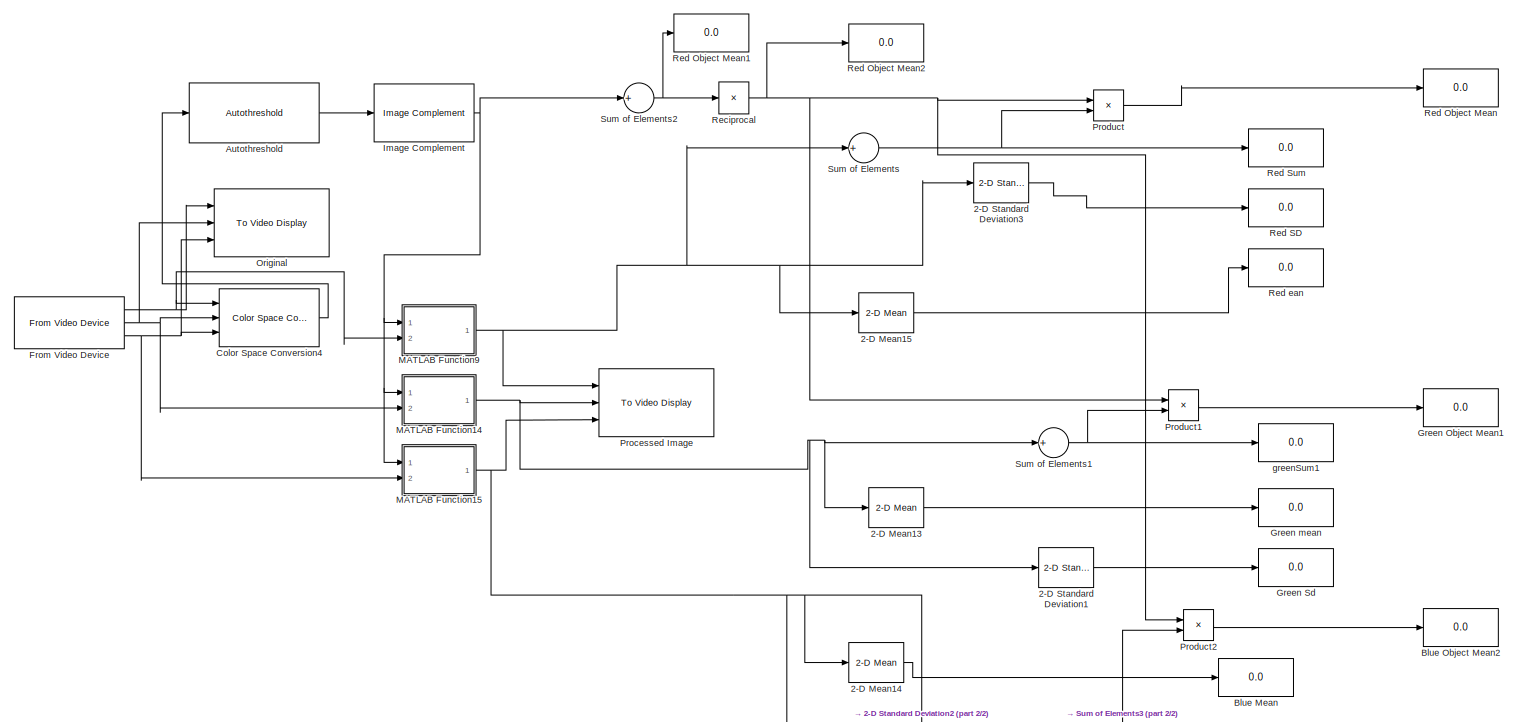
[diagram: root canvas - part 1/2, most of the canvas]
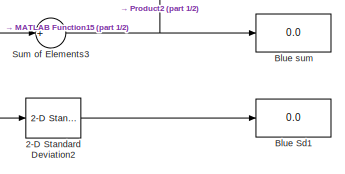
[diagram: root canvas - part 2/2, bottom right region]
MODEL slx_7010275f873f
KIND model
CONFIG AbsTol = auto
CONFIG FixedStep = auto
CONFIG MaxStep = auto
CONFIG MinStep = auto
CONFIG RelTol = 1e-3
CONFIG SampleTimeConstraint = Unconstrained
CONFIG Solver = VariableStepAuto
CONFIG SolverMode = Auto
CONFIG SolverName = VariableStepAuto
CONFIG StartTime = 0.0
CONFIG StopTime = inf
BLOCK [Reference] 2-D Mean13  REF=visionstatistics/2-D Mean
  Ports = [1, 1]
  SourceBlock = visionstatistics/2-D Mean
  SourceType = 2-D Mean
  UserDataPersistent = on
BLOCK [Reference] 2-D Mean14  REF=visionstatistics/2-D Mean
  Ports = [1, 1]
  SourceBlock = visionstatistics/2-D Mean
  SourceType = 2-D Mean
  UserDataPersistent = on
BLOCK [Reference] 2-D Mean15  REF=visionstatistics/2-D Mean
  Ports = [1, 1]
  SourceBlock = visionstatistics/2-D Mean
  SourceType = 2-D Mean
  UserDataPersistent = on
BLOCK [Reference] 2-D Standard Deviation1  REF=visionstatistics/2-D Standard
Deviation
  Ports = [1, 1]
  SourceBlock = visionstatistics/2-D Standard\nDeviation
  SourceType = 2-D Standard Deviation
  UserDataPersistent = on
BLOCK [Reference] 2-D Standard Deviation2  REF=visionstatistics/2-D Standard
Deviation
  Ports = [1, 1]
  SourceBlock = visionstatistics/2-D Standard\nDeviation
  SourceType = 2-D Standard Deviation
  UserDataPersistent = on
BLOCK [Reference] 2-D Standard Deviation3  REF=visionstatistics/2-D Standard
Deviation
  Ports = [1, 1]
  SourceBlock = visionstatistics/2-D Standard\nDeviation
  SourceType = 2-D Standard Deviation
  UserDataPersistent = on
BLOCK [Reference] Autothreshold  REF=visionconversions/Autothreshold
  Ports = [1, 1]
  SourceBlock = visionconversions/Autothreshold
  SourceType = Autothreshold
BLOCK [Display] Blue Mean
  Decimation = 1
  Ports = [1]
BLOCK [Display] Blue Object Mean2
  Decimation = 1
  Ports = [1]
BLOCK [Display] Blue Sd1
  Decimation = 1
  Ports = [1]
BLOCK [Display] Blue sum
  Decimation = 1
  Ports = [1]
BLOCK [Reference] Color Space Conversion4  REF=visionconversions/Color Space
 Conversion
  Ports = [3, 1]
  SourceBlock = visionconversions/Color Space\n Conversion
  SourceType = Color Space Conversion
BLOCK [Reference] From Video Device  REF=imaqlib/From Video Device
  Ports = [0, 3]
  SourceBlock = imaqlib/From Video Device
  SourceType = From Video Device
  UserDataPersistent = on
BLOCK [Display] Green Object Mean1
  Decimation = 1
  Ports = [1]
BLOCK [Display] Green Sd
  Decimation = 1
  Ports = [1]
BLOCK [Display] Green mean
  Decimation = 1
  Ports = [1]
BLOCK [Reference] Image Complement  REF=visionconversions/Image Complement
  Ports = [1, 1]
  SourceBlock = visionconversions/Image Complement
  SourceType = Image Complement
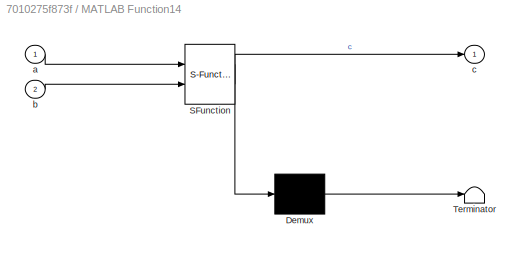
BLOCK [SubSystem] MATLAB Function14
  ErrorFcn = Stateflow.Translate.translate
  PermitHierarchicalResolution = ExplicitOnly
  Ports = [2, 1]
  RequestExecContextInheritance = off
  SFBlockType = MATLAB Function
  TreatAsAtomicUnit = on
  Variant = off
BLOCK [Demux] MATLAB Function14/ Demux 
  Outputs = 1
  Ports = [1, 1]
BLOCK [S-Function] MATLAB Function14/ SFunction 
  EnableBusSupport = on
  FunctionName = sf_sfun
  PortCounts = [2 2]
  Ports = [2, 2]
  SFunctionDeploymentMode = off
  Tag = Stateflow S-Function RGB_Color_Component_AutoThresholding 10
BLOCK [Terminator] MATLAB Function14/ Terminator 
BLOCK [Inport] MATLAB Function14/a
  IconDisplay = Port number
BLOCK [Inport] MATLAB Function14/b
  IconDisplay = Port number
  Port = 2
BLOCK [Outport] MATLAB Function14/c
  IconDisplay = Port number
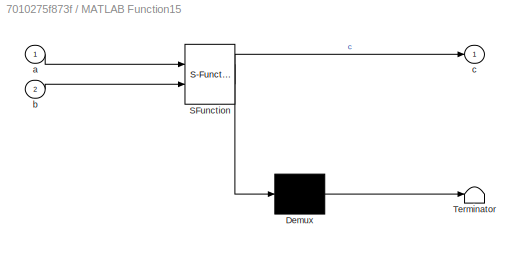
BLOCK [SubSystem] MATLAB Function15
  ErrorFcn = Stateflow.Translate.translate
  PermitHierarchicalResolution = ExplicitOnly
  Ports = [2, 1]
  RequestExecContextInheritance = off
  SFBlockType = MATLAB Function
  TreatAsAtomicUnit = on
  Variant = off
BLOCK [Demux] MATLAB Function15/ Demux 
  Outputs = 1
  Ports = [1, 1]
BLOCK [S-Function] MATLAB Function15/ SFunction 
  EnableBusSupport = on
  FunctionName = sf_sfun
  PortCounts = [2 2]
  Ports = [2, 2]
  SFunctionDeploymentMode = off
  Tag = Stateflow S-Function RGB_Color_Component_AutoThresholding 15
BLOCK [Terminator] MATLAB Function15/ Terminator 
BLOCK [Inport] MATLAB Function15/a
  IconDisplay = Port number
BLOCK [Inport] MATLAB Function15/b
  IconDisplay = Port number
  Port = 2
BLOCK [Outport] MATLAB Function15/c
  IconDisplay = Port number
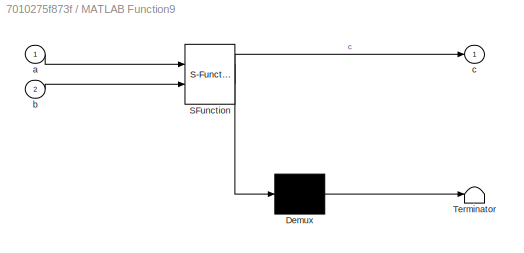
BLOCK [SubSystem] MATLAB Function9
  ErrorFcn = Stateflow.Translate.translate
  PermitHierarchicalResolution = ExplicitOnly
  Ports = [2, 1]
  RequestExecContextInheritance = off
  SFBlockType = MATLAB Function
  TreatAsAtomicUnit = on
  Variant = off
BLOCK [Demux] MATLAB Function9/ Demux 
  Outputs = 1
  Ports = [1, 1]
BLOCK [S-Function] MATLAB Function9/ SFunction 
  EnableBusSupport = on
  FunctionName = sf_sfun
  PortCounts = [2 2]
  Ports = [2, 2]
  SFunctionDeploymentMode = off
  Tag = Stateflow S-Function RGB_Color_Component_AutoThresholding 16
BLOCK [Terminator] MATLAB Function9/ Terminator 
BLOCK [Inport] MATLAB Function9/a
  IconDisplay = Port number
BLOCK [Inport] MATLAB Function9/b
  IconDisplay = Port number
  Port = 2
BLOCK [Outport] MATLAB Function9/c
  IconDisplay = Port number
BLOCK [Reference] Original  REF=visionsinks/To Video Display
  Ports = [3]
  SourceBlock = visionsinks/To Video Display
  SourceType = To Video Display
BLOCK [Reference] Processed Image  REF=visionsinks/To Video Display
  Ports = [3]
  SourceBlock = visionsinks/To Video Display
  SourceType = To Video Display
BLOCK [Product] Product
  InputSameDT = off
  OutDataTypeStr = Inherit: Inherit via internal rule
  Ports = [2, 1]
  RndMeth = Floor
  SaturateOnIntegerOverflow = off
BLOCK [Product] Product1
  InputSameDT = off
  OutDataTypeStr = Inherit: Inherit via internal rule
  Ports = [2, 1]
  RndMeth = Floor
  SaturateOnIntegerOverflow = off
BLOCK [Product] Product2
  InputSameDT = off
  OutDataTypeStr = Inherit: Inherit via internal rule
  Ports = [2, 1]
  RndMeth = Floor
  SaturateOnIntegerOverflow = off
BLOCK [Product] Reciprocal
  InputSameDT = off
  Inputs = /
  OutDataTypeStr = double
  Ports = [1, 1]
BLOCK [Display] Red Object Mean
  Decimation = 1
  Ports = [1]
BLOCK [Display] Red Object Mean1
  Decimation = 1
  Ports = [1]
BLOCK [Display] Red Object Mean2
  Decimation = 1
  Ports = [1]
BLOCK [Display] Red SD
  Decimation = 1
  Ports = [1]
BLOCK [Display] Red Sum
  Decimation = 1
  Ports = [1]
BLOCK [Display] Red ean
  Decimation = 1
  Ports = [1]
BLOCK [Sum] Sum of Elements
  InputSameDT = off
  Inputs = +
  OutDataTypeStr = Inherit: Inherit via internal rule
  Ports = [1, 1]
  SaturateOnIntegerOverflow = off
BLOCK [Sum] Sum of Elements1
  InputSameDT = off
  Inputs = +
  OutDataTypeStr = Inherit: Inherit via internal rule
  Ports = [1, 1]
  SaturateOnIntegerOverflow = off
BLOCK [Sum] Sum of Elements2
  InputSameDT = off
  Inputs = +
  OutDataTypeStr = Inherit: Inherit via internal rule
  Ports = [1, 1]
  SaturateOnIntegerOverflow = off
BLOCK [Sum] Sum of Elements3
  InputSameDT = off
  Inputs = +
  OutDataTypeStr = Inherit: Inherit via internal rule
  Ports = [1, 1]
  SaturateOnIntegerOverflow = off
BLOCK [Display] greenSum1
  Decimation = 1
  Ports = [1]
LINE 2-D Mean13:1 -> Green mean:1
LINE 2-D Mean14:1 -> Blue Mean:1
LINE 2-D Mean15:1 -> Red ean:1
LINE 2-D Standard Deviation1:1 -> Green Sd:1
LINE 2-D Standard Deviation2:1 -> Blue Sd1:1
LINE 2-D Standard Deviation3:1 -> Red SD:1
LINE Autothreshold:1 -> Image Complement:1
LINE Color Space Conversion4:1 -> Autothreshold:1
NET From Video Device:1 -> Color Space Conversion4:1, MATLAB Function9:2, Original:1
NET From Video Device:2 -> Color Space Conversion4:2, MATLAB Function14:2, Original:2
NET From Video Device:3 -> Color Space Conversion4:3, MATLAB Function15:2, Original:3
NET Image Complement:1 -> MATLAB Function14:1, MATLAB Function15:1, MATLAB Function9:1, Sum of Elements2:1
NET MATLAB Function14:1 -> 2-D Mean13:1, 2-D Standard Deviation1:1, Processed Image:2, Sum of Elements1:1
NET MATLAB Function15:1 -> 2-D Mean14:1, 2-D Standard Deviation2:1, Processed Image:3, Sum of Elements3:1
NET MATLAB Function9:1 -> 2-D Mean15:1, 2-D Standard Deviation3:1, Processed Image:1, Sum of Elements:1
LINE Product1:1 -> Green Object Mean1:1
LINE Product2:1 -> Blue Object Mean2:1
LINE Product:1 -> Red Object Mean:1
NET Reciprocal:1 -> Product1:1, Product2:1, Product:1, Red Object Mean2:1
NET Sum of Elements1:1 -> Product1:2, greenSum1:1
NET Sum of Elements2:1 -> Reciprocal:1, Red Object Mean1:1
NET Sum of Elements3:1 -> Blue sum:1, Product2:2
NET Sum of Elements:1 -> Product:2, Red Sum:1
note: NET lines group one-source signal fan-out (src -> all destinations, sorted); 1:1 wires keep LINE
CHART MATLAB Function14 states=1 transitions=1
  STATE_LABEL 'eML_blk_kernel()'
  STATE_LABEL 'SCRIPT:\nfunction c = fcn(a,b)\n%#codegen\nc=a.*b;\nreturn'
CHART MATLAB Function15 states=1 transitions=1
  STATE_LABEL 'eML_blk_kernel()'
  STATE_LABEL 'SCRIPT:\nfunction c = fcn(a,b)\n%#codegen\nc=a.*b;\nreturn'
CHART MATLAB Function9 states=1 transitions=1
  STATE_LABEL 'eML_blk_kernel()'
  STATE_LABEL 'SCRIPT:\nfunction c = fcn(a,b)\n%#codegen\nc=a.*b;\nreturn'
